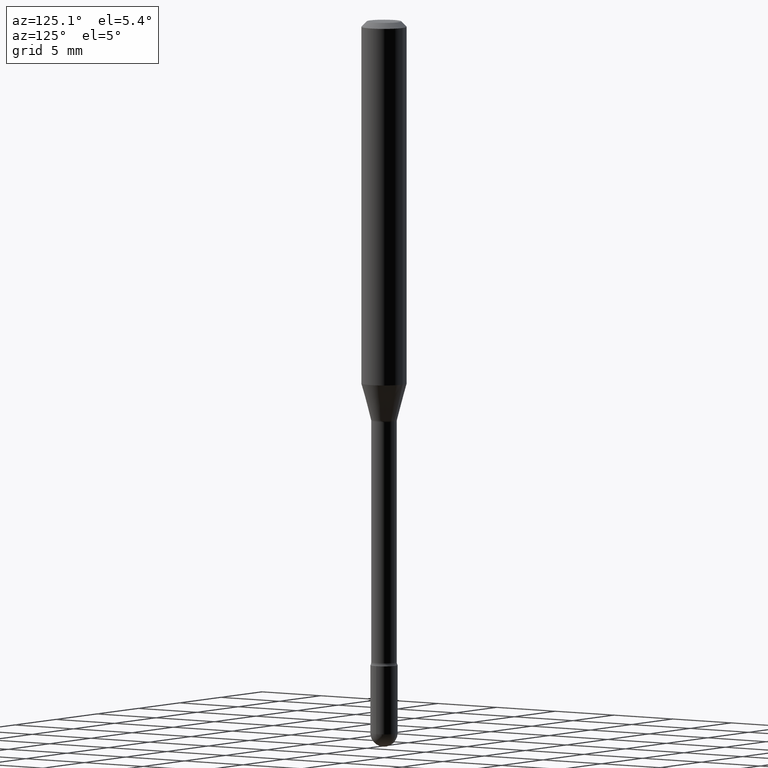
[diagram: clean part render]
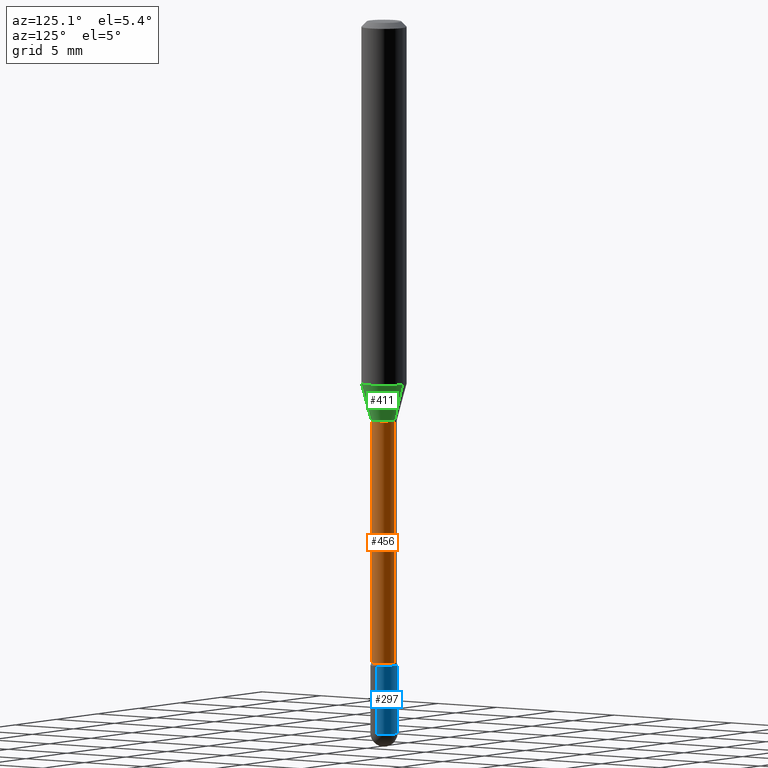
[diagram: same view with three faces highlighted in distinct colors, each labeled with its STEP entity id]
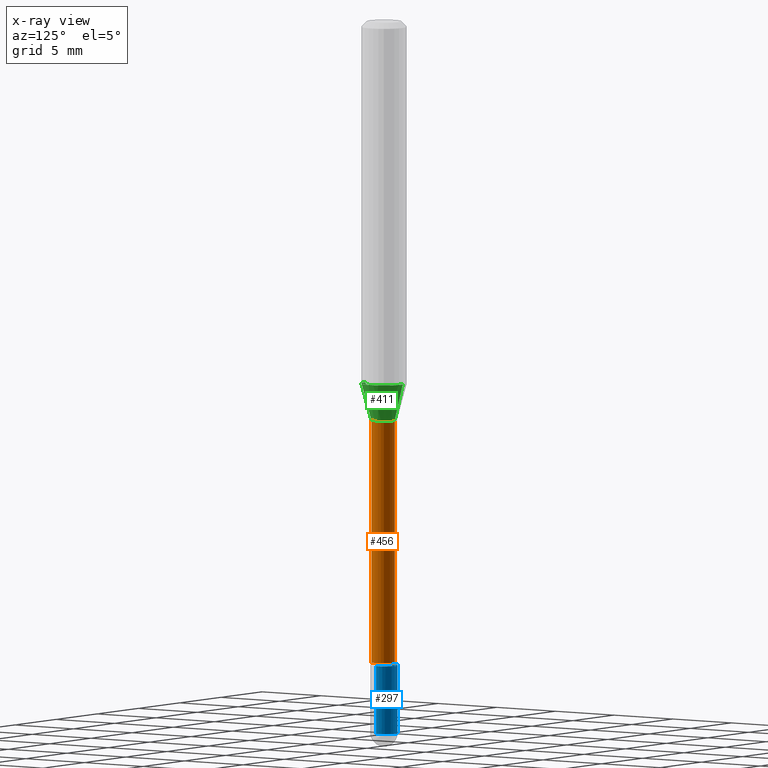
[diagram: x-ray of the same camera — body ghosted, the three highlighted faces saturated]
A machine part, auxiliary view with three faces highlighted in distinct colors.
The next image is the same camera in x-ray (body ghosted, the three faces saturated) — at least one of them is partly hidden behind the body in this view.
Their STEP definitions:

[orange] entity #456 — the highlighted cylindrical surface (edge-blend (fillet) strip) has radius 0.8954 mm, axis along (-0, 0, 1).
#14 = CIRCLE ( 'NONE', #201, 0.03525000000000008682 ) ;
#39 = ORIENTED_EDGE ( 'NONE', *, *, #266, .T. ) ;
#55 = CARTESIAN_POINT ( 'NONE',  ( -2.461494343884138594E-16, -0.03525000000000384076, -1.101974787463810834 ) ) ;
#57 = DIRECTION ( 'NONE',  ( -2.445465254371968142E-29, 3.491486425241759553E-15, 1.000000000000000000 ) ) ;
#86 = CARTESIAN_POINT ( 'NONE',  ( 2.584599201327800595E-16, 0.03524999999999392508, -1.767098259685360384 ) ) ;
#104 = CARTESIAN_POINT ( 'NONE',  ( -1.169113584055446105E-44, 1.669184350826100908E-30, 4.780733988912460139E-16 ) ) ;
#127 = VERTEX_POINT ( 'NONE', #454 ) ;
#133 = ORIENTED_EDGE ( 'NONE', *, *, #357, .F. ) ;
#135 = CARTESIAN_POINT ( 'NONE',  ( 2.504663143554787774E-16, 0.03524999999999615247, -1.101974787463811278 ) ) ;
#152 = VERTEX_POINT ( 'NONE', #86 ) ;
#181 = ORIENTED_EDGE ( 'NONE', *, *, #235, .T. ) ;
#201 = AXIS2_PLACEMENT_3D ( 'NONE', #422, #477, #303 ) ;
#215 = VECTOR ( 'NONE', #373, 39.37007874015748143 ) ;
#226 = EDGE_CURVE ( 'NONE', #281, #328, #330, .T. ) ;
#235 = EDGE_CURVE ( 'NONE', #127, #152, #14, .T. ) ;
#240 = DIRECTION ( 'NONE',  ( -6.982962677686265133E-15, -1.000000000000000000, 3.874961693140799059E-15 ) ) ;
#246 = ORIENTED_EDGE ( 'NONE', *, *, #226, .F. ) ;
#247 = AXIS2_PLACEMENT_3D ( 'NONE', #104, #292, #428 ) ;
#266 = EDGE_CURVE ( 'NONE', #152, #328, #374, .T. ) ;
#272 = CARTESIAN_POINT ( 'NONE',  ( -2.461494343884411737E-16, -0.03525000000000003825, 6.011482953810182667E-16 ) ) ;
#281 = VERTEX_POINT ( 'NONE', #55 ) ;
#292 = DIRECTION ( 'NONE',  ( -2.445465254371968142E-29, 3.491486425241759553E-15, 1.000000000000000000 ) ) ;
#296 = CARTESIAN_POINT ( 'NONE',  ( 2.694841053936684124E-29, -3.847530011388569160E-15, -1.101974787463811056 ) ) ;
#303 = DIRECTION ( 'NONE',  ( -6.982962677686266711E-15, -1.000000000000000000, 0.000000000000000000 ) ) ;
#327 = DIRECTION ( 'NONE',  ( -2.445465254371968142E-29, 3.491486425241759553E-15, 1.000000000000000000 ) ) ;
#328 = VERTEX_POINT ( 'NONE', #135 ) ;
#330 = CIRCLE ( 'NONE', #379, 0.03524999999999999661 ) ;
#357 = EDGE_CURVE ( 'NONE', #127, #281, #542, .T. ) ;
#361 = EDGE_LOOP ( 'NONE', ( #181, #39, #246, #133 ) ) ;
#373 = DIRECTION ( 'NONE',  ( -2.445465254371968142E-29, 3.491486425241759553E-15, 1.000000000000000000 ) ) ;
#374 = LINE ( 'NONE', #425, #397 ) ;
#376 = CYLINDRICAL_SURFACE ( 'NONE', #247, 0.03525000000000003825 ) ;
#379 = AXIS2_PLACEMENT_3D ( 'NONE', #296, #57, #240 ) ;
#397 = VECTOR ( 'NONE', #327, 39.37007874015748143 ) ;
#422 = CARTESIAN_POINT ( 'NONE',  ( 4.321377395121722522E-29, -6.169799585759774289E-15, -1.767098259685360384 ) ) ;
#425 = CARTESIAN_POINT ( 'NONE',  ( 2.504663143554355873E-16, 0.03525000000000003825, 3.549985024014739091E-16 ) ) ;
#428 = DIRECTION ( 'NONE',  ( -6.982962677686266711E-15, -1.000000000000000000, 3.491486425241760737E-15 ) ) ;
#454 = CARTESIAN_POINT ( 'NONE',  ( -2.461494343883982794E-16, -0.03525000000000625550, -1.767098259685360384 ) ) ;
#456 = ADVANCED_FACE ( 'NONE', ( #518 ), #376, .T. ) ;
#477 = DIRECTION ( 'NONE',  ( -2.445465254371968142E-29, 3.491486425241759553E-15, 1.000000000000000000 ) ) ;
#518 = FACE_OUTER_BOUND ( 'NONE', #361, .T. ) ;
#542 = LINE ( 'NONE', #272, #215 ) ;

[blue] entity #297 — the highlighted cylindrical surface (edge-blend (fillet) strip) has radius 0.9525 mm, axis along (-0, 0, 1).
#6 = EDGE_CURVE ( 'NONE', #238, #259, #223, .T. ) ;
#17 = CARTESIAN_POINT ( 'NONE',  ( 2.618611004132830729E-16, 0.03749999999999317074, -1.962499999999999689 ) ) ;
#24 = DIRECTION ( 'NONE',  ( 1.000000000000000000, -6.982962677686268288E-15, 0.000000000000000000 ) ) ;
#34 = CIRCLE ( 'NONE', #471, 0.03749999999999999861 ) ;
#48 = FACE_OUTER_BOUND ( 'NONE', #453, .T. ) ;
#68 = DIRECTION ( 'NONE',  ( -2.445468806185136597E-29, 3.491481338843145583E-15, 1.000000000000000000 ) ) ;
#78 = ORIENTED_EDGE ( 'NONE', *, *, #396, .T. ) ;
#87 = ORIENTED_EDGE ( 'NONE', *, *, #463, .T. ) ;
#91 = DIRECTION ( 'NONE',  ( -2.445468806185136877E-29, 3.491481338843145188E-15, 1.000000000000000000 ) ) ;
#101 = ORIENTED_EDGE ( 'NONE', *, *, #473, .F. ) ;
#102 = VECTOR ( 'NONE', #91, 39.37007874015748143 ) ;
#154 = CARTESIAN_POINT ( 'NONE',  ( -0.03749999999999999861, -6.258252226053091317E-15, -1.775000000000000133 ) ) ;
#172 = ORIENTED_EDGE ( 'NONE', *, *, #438, .F. ) ;
#180 = DIRECTION ( 'NONE',  ( -2.445468806185136597E-29, 3.491481338843145583E-15, 1.000000000000000000 ) ) ;
#182 = CARTESIAN_POINT ( 'NONE',  ( -0.03749999999999999861, 2.664535259100375598E-16, -1.844600658845589808E-30 ) ) ;
#189 = DIRECTION ( 'NONE',  ( -2.445468806185136597E-29, 3.491481338843145583E-15, 1.000000000000000000 ) ) ;
#200 = DIRECTION ( 'NONE',  ( 1.000000000000000000, -6.982962677686268288E-15, 0.000000000000000000 ) ) ;
#223 = LINE ( 'NONE', #182, #102 ) ;
#238 = VERTEX_POINT ( 'NONE', #258 ) ;
#249 = LINE ( 'NONE', #302, #544 ) ;
#258 = CARTESIAN_POINT ( 'NONE',  ( -0.03749999999999999861, -6.258252226053091317E-15, -1.962499999999999689 ) ) ;
#259 = VERTEX_POINT ( 'NONE', #154 ) ;
#289 = CARTESIAN_POINT ( 'NONE',  ( 4.340707130978617347E-29, -6.197379376446583794E-15, -1.775000000000000133 ) ) ;
#293 = ORIENTED_EDGE ( 'NONE', *, *, #6, .T. ) ;
#295 = DIRECTION ( 'NONE',  ( -2.445468806185136877E-29, 3.491481338843145188E-15, 1.000000000000000000 ) ) ;
#297 = ADVANCED_FACE ( 'NONE', ( #48 ), #405, .T. ) ;
#301 = CIRCLE ( 'NONE', #497, 0.03749999999999999861 ) ;
#302 = CARTESIAN_POINT ( 'NONE',  ( 0.03749999999999999861, -2.618611004132350016E-16, 1.828566290923475922E-30 ) ) ;
#315 = DIRECTION ( 'NONE',  ( 1.000000000000000000, -6.982962677686266711E-15, 4.876176775795935793E-29 ) ) ;
#322 = CARTESIAN_POINT ( 'NONE',  ( 4.799232532138329338E-29, -6.852032127479672087E-15, -1.962499999999999689 ) ) ;
#396 = EDGE_CURVE ( 'NONE', #413, #238, #34, .T. ) ;
#405 = CYLINDRICAL_SURFACE ( 'NONE', #426, 0.03749999999999999861 ) ;
#413 = VERTEX_POINT ( 'NONE', #17 ) ;
#418 = DIRECTION ( 'NONE',  ( 1.000000000000000000, -6.982962677686268288E-15, 0.000000000000000000 ) ) ;
#424 = CARTESIAN_POINT ( 'NONE',  ( 0.03749999999999999861, -6.459240476859818795E-15, -1.775000000000000133 ) ) ;
#426 = AXIS2_PLACEMENT_3D ( 'NONE', #448, #189, #315 ) ;
#430 = DIRECTION ( 'NONE',  ( -2.445468806185136597E-29, 3.491481338843145583E-15, 1.000000000000000000 ) ) ;
#438 = EDGE_CURVE ( 'NONE', #555, #558, #249, .T. ) ;
#448 = CARTESIAN_POINT ( 'NONE',  ( 0.000000000000000000, 0.000000000000000000, 0.000000000000000000 ) ) ;
#453 = EDGE_LOOP ( 'NONE', ( #78, #293, #101, #172, #87 ) ) ;
#461 = AXIS2_PLACEMENT_3D ( 'NONE', #289, #68, #200 ) ;
#463 = EDGE_CURVE ( 'NONE', #555, #413, #301, .T. ) ;
#471 = AXIS2_PLACEMENT_3D ( 'NONE', #322, #180, #418 ) ;
#473 = EDGE_CURVE ( 'NONE', #558, #259, #551, .T. ) ;
#497 = AXIS2_PLACEMENT_3D ( 'NONE', #521, #430, #24 ) ;
#521 = CARTESIAN_POINT ( 'NONE',  ( 4.799232532138329338E-29, -6.852032127479672087E-15, -1.962499999999999689 ) ) ;
#544 = VECTOR ( 'NONE', #295, 39.37007874015748143 ) ;
#551 = CIRCLE ( 'NONE', #461, 0.03749999999999999861 ) ;
#553 = CARTESIAN_POINT ( 'NONE',  ( 0.03749999999999999861, -6.786566852376363731E-15, -1.962499999999999689 ) ) ;
#555 = VERTEX_POINT ( 'NONE', #553 ) ;
#558 = VERTEX_POINT ( 'NONE', #424 ) ;

[green] entity #411 — the highlighted conical surface has half-angle 15 deg.
#11 = CARTESIAN_POINT ( 'NONE',  ( 4.440892098500869722E-16, 0.06249999999999653055, -0.9983016154937485176 ) ) ;
#12 = DIRECTION ( 'NONE',  ( -6.982962677686266711E-15, -1.000000000000000000, 3.819579138641765120E-15 ) ) ;
#45 = CARTESIAN_POINT ( 'NONE',  ( 2.685347059207164379E-29, -3.833975063650027197E-15, -1.098092501787273134 ) ) ;
#46 = LINE ( 'NONE', #193, #188 ) ;
#60 = VERTEX_POINT ( 'NONE', #270 ) ;
#73 = CONICAL_SURFACE ( 'NONE', #178, 0.03576111260566397498, 0.2617993877991499629 ) ;
#79 = CARTESIAN_POINT ( 'NONE',  ( -2.497185146378605472E-16, -0.03576111260566781219, -1.098092501787272912 ) ) ;
#94 = FACE_OUTER_BOUND ( 'NONE', #543, .T. ) ;
#97 = DIRECTION ( 'NONE',  ( -2.445465254371968142E-29, 3.491486425241759553E-15, 1.000000000000000000 ) ) ;
#99 = VERTEX_POINT ( 'NONE', #11 ) ;
#111 = CIRCLE ( 'NONE', #444, 0.06250000000000000000 ) ;
#112 = CIRCLE ( 'NONE', #416, 0.03576111260566397498 ) ;
#113 = EDGE_CURVE ( 'NONE', #202, #333, #46, .T. ) ;
#148 = DIRECTION ( 'NONE',  ( -2.445465254371968142E-29, 3.491486425241759553E-15, 1.000000000000000000 ) ) ;
#158 = ORIENTED_EDGE ( 'NONE', *, *, #372, .F. ) ;
#178 = AXIS2_PLACEMENT_3D ( 'NONE', #45, #412, #12 ) ;
#183 = CARTESIAN_POINT ( 'NONE',  ( 2.441311914073365852E-29, -3.485556538793341018E-15, -0.9983016154937482955 ) ) ;
#188 = VECTOR ( 'NONE', #197, 39.37007874015748143 ) ;
#193 = CARTESIAN_POINT ( 'NONE',  ( -2.497185146378605472E-16, -0.03576111260566781219, -1.098092501787272912 ) ) ;
#197 = DIRECTION ( 'NONE',  ( -1.807323732225328167E-15, -0.2588190451025179084, 0.9659258262890690894 ) ) ;
#202 = VERTEX_POINT ( 'NONE', #79 ) ;
#203 = DIRECTION ( 'NONE',  ( 1.839019923739597949E-15, 0.2588190451025246253, 0.9659258262890670910 ) ) ;
#205 = DIRECTION ( 'NONE',  ( -6.982962677686266711E-15, -1.000000000000000000, 3.819579138641765120E-15 ) ) ;
#237 = CARTESIAN_POINT ( 'NONE',  ( 2.540979878465616774E-16, 0.03576111260566014471, -1.098092501787273356 ) ) ;
#270 = CARTESIAN_POINT ( 'NONE',  ( 3.490935988483243248E-16, 0.03576111260566014471, -1.098092501787273356 ) ) ;
#284 = CARTESIAN_POINT ( 'NONE',  ( -4.364351673553672147E-16, -0.06250000000000348332, -0.9983016154937480735 ) ) ;
#333 = VERTEX_POINT ( 'NONE', #284 ) ;
#372 = EDGE_CURVE ( 'NONE', #333, #99, #111, .T. ) ;
#380 = VECTOR ( 'NONE', #203, 39.37007874015748854 ) ;
#406 = ORIENTED_EDGE ( 'NONE', *, *, #485, .T. ) ;
#411 = ADVANCED_FACE ( 'NONE', ( #94 ), #73, .T. ) ;
#412 = DIRECTION ( 'NONE',  ( -2.445465254371968142E-29, 3.491486425241759553E-15, 1.000000000000000000 ) ) ;
#416 = AXIS2_PLACEMENT_3D ( 'NONE', #556, #148, #205 ) ;
#444 = AXIS2_PLACEMENT_3D ( 'NONE', #183, #97, #458 ) ;
#458 = DIRECTION ( 'NONE',  ( -6.982962677686265922E-15, -1.000000000000000000, 4.370956789862821150E-15 ) ) ;
#472 = ORIENTED_EDGE ( 'NONE', *, *, #113, .F. ) ;
#485 = EDGE_CURVE ( 'NONE', #60, #99, #560, .T. ) ;
#495 = EDGE_CURVE ( 'NONE', #202, #60, #112, .T. ) ;
#529 = ORIENTED_EDGE ( 'NONE', *, *, #495, .T. ) ;
#543 = EDGE_LOOP ( 'NONE', ( #529, #406, #158, #472 ) ) ;
#556 = CARTESIAN_POINT ( 'NONE',  ( 2.685347059207164379E-29, -3.833975063650027197E-15, -1.098092501787273134 ) ) ;
#560 = LINE ( 'NONE', #237, #380 ) ;